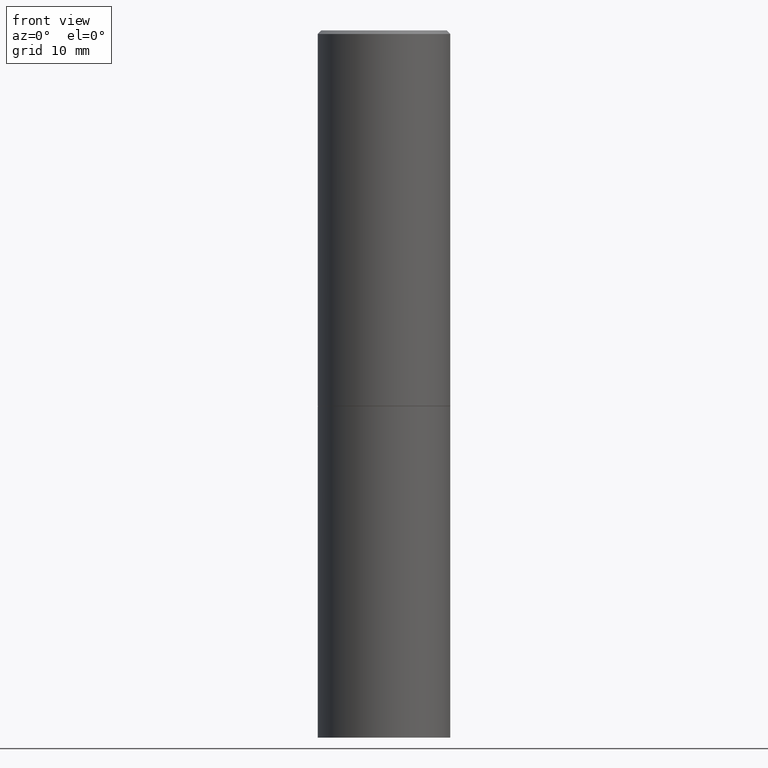
[diagram: clean part render]
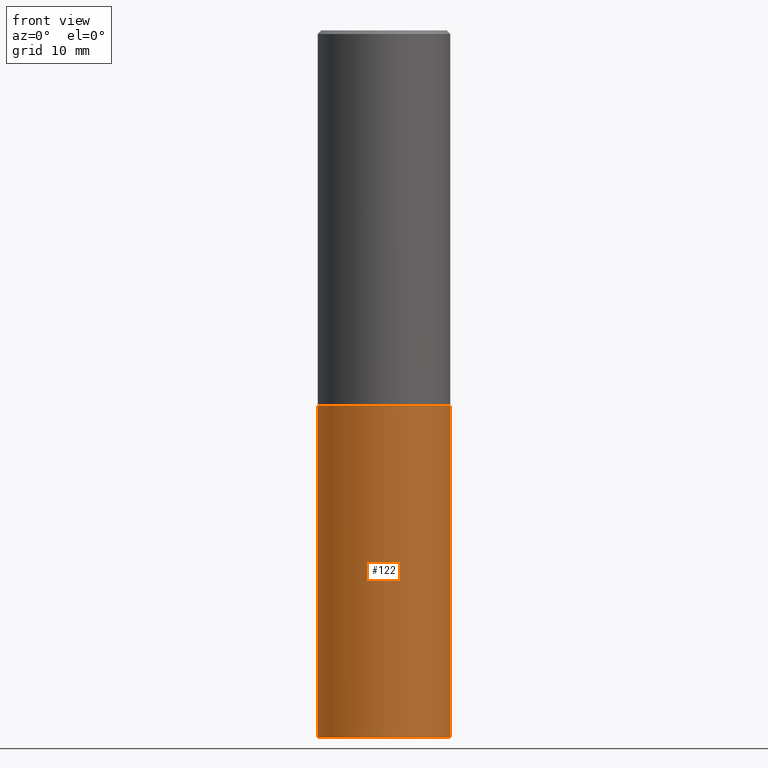
[diagram: same view with one face highlighted and labeled with its STEP entity id]
A machine part, front view. The second image highlights one B-rep face of the part: STEP entity #122.
In plain terms, the highlighted cylindrical surface (partial cylindrical patch) has radius 9.525 mm, axis along (-0, 0, 1).
Its self-contained STEP definition (entity closure, byte-faithful):
#8 = CARTESIAN_POINT ( 'NONE',  ( -0.3750000000000000555, 2.664535259100376091E-15, -1.844600658845589598E-29 ) ) ;
#35 = AXIS2_PLACEMENT_3D ( 'NONE', #182, #43, #119 ) ;
#43 = DIRECTION ( 'NONE',  ( -2.445468806185136597E-29, 3.491481338843145583E-15, 1.000000000000000000 ) ) ;
#44 = VERTEX_POINT ( 'NONE', #299 ) ;
#54 = DIRECTION ( 'NONE',  ( 1.000000000000000000, -6.982962677686266711E-15, 0.000000000000000000 ) ) ;
#59 = DIRECTION ( 'NONE',  ( -2.445468806185136877E-29, 3.491481338843145188E-15, 1.000000000000000000 ) ) ;
#68 = VERTEX_POINT ( 'NONE', #153 ) ;
#75 = DIRECTION ( 'NONE',  ( -2.445468806185136597E-29, 3.491481338843145583E-15, 1.000000000000000000 ) ) ;
#100 = DIRECTION ( 'NONE',  ( 1.000000000000000000, -6.982962677686266711E-15, 0.000000000000000000 ) ) ;
#119 = DIRECTION ( 'NONE',  ( 1.000000000000000000, -6.982962677686265922E-15, 4.876176775795935793E-29 ) ) ;
#122 = ADVANCED_FACE ( 'NONE', ( #266 ), #178, .T. ) ;
#137 = DIRECTION ( 'NONE',  ( -2.445468806185136877E-29, 3.491481338843145188E-15, 1.000000000000000000 ) ) ;
#138 = DIRECTION ( 'NONE',  ( -2.445468806185136597E-29, 3.491481338843145583E-15, 1.000000000000000000 ) ) ;
#142 = VERTEX_POINT ( 'NONE', #287 ) ;
#153 = CARTESIAN_POINT ( 'NONE',  ( -0.3750000000000000555, -8.028126341106757280E-15, -4.000000000000000000 ) ) ;
#163 = LINE ( 'NONE', #281, #253 ) ;
#178 = CYLINDRICAL_SURFACE ( 'NONE', #35, 0.3750000000000000555 ) ;
#182 = CARTESIAN_POINT ( 'NONE',  ( 0.000000000000000000, 0.000000000000000000, 0.000000000000000000 ) ) ;
#192 = LINE ( 'NONE', #8, #335 ) ;
#194 = EDGE_CURVE ( 'NONE', #68, #142, #330, .T. ) ;
#197 = CARTESIAN_POINT ( 'NONE',  ( 5.196621213143415268E-29, -7.419397845041683624E-15, -2.125000000000000000 ) ) ;
#208 = EDGE_LOOP ( 'NONE', ( #247, #293, #356, #306 ) ) ;
#240 = VERTEX_POINT ( 'NONE', #343 ) ;
#247 = ORIENTED_EDGE ( 'NONE', *, *, #276, .F. ) ;
#253 = VECTOR ( 'NONE', #137, 39.37007874015748143 ) ;
#266 = FACE_OUTER_BOUND ( 'NONE', #208, .T. ) ;
#276 = EDGE_CURVE ( 'NONE', #68, #44, #192, .T. ) ;
#280 = AXIS2_PLACEMENT_3D ( 'NONE', #197, #138, #54 ) ;
#281 = CARTESIAN_POINT ( 'NONE',  ( 0.3750000000000000555, -2.618611004132350016E-15, 1.828566290923476203E-29 ) ) ;
#285 = EDGE_CURVE ( 'NONE', #142, #240, #163, .T. ) ;
#287 = CARTESIAN_POINT ( 'NONE',  ( 0.3750000000000000555, -1.658453635950493392E-14, -4.000000000000000000 ) ) ;
#293 = ORIENTED_EDGE ( 'NONE', *, *, #194, .T. ) ;
#299 = CARTESIAN_POINT ( 'NONE',  ( -0.3750000000000000555, -8.028126341106757280E-15, -2.125000000000000000 ) ) ;
#306 = ORIENTED_EDGE ( 'NONE', *, *, #307, .F. ) ;
#307 = EDGE_CURVE ( 'NONE', #44, #240, #323, .T. ) ;
#323 = CIRCLE ( 'NONE', #280, 0.3750000000000000555 ) ;
#330 = CIRCLE ( 'NONE', #362, 0.3750000000000000555 ) ;
#335 = VECTOR ( 'NONE', #59, 39.37007874015748143 ) ;
#343 = CARTESIAN_POINT ( 'NONE',  ( 0.3750000000000000555, -1.003800884917403364E-14, -2.125000000000000000 ) ) ;
#352 = CARTESIAN_POINT ( 'NONE',  ( 9.781875224740546387E-29, -1.396592535537258233E-14, -4.000000000000000000 ) ) ;
#356 = ORIENTED_EDGE ( 'NONE', *, *, #285, .T. ) ;
#362 = AXIS2_PLACEMENT_3D ( 'NONE', #352, #75, #100 ) ;